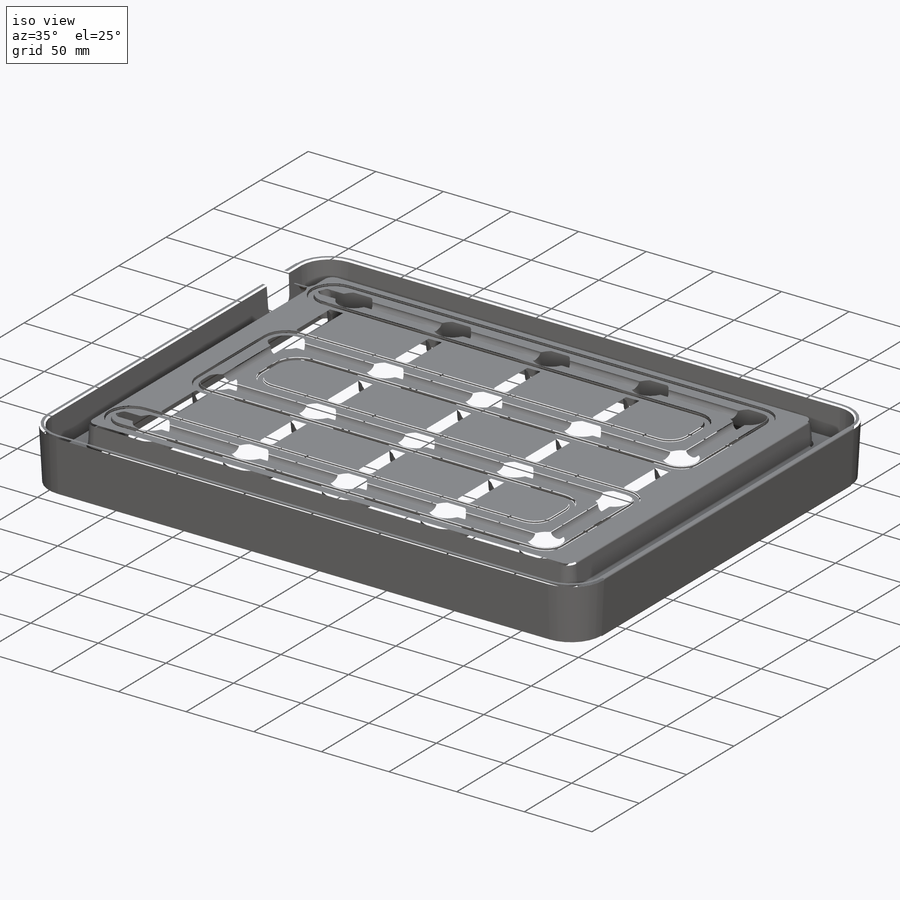
[diagram: iso view]
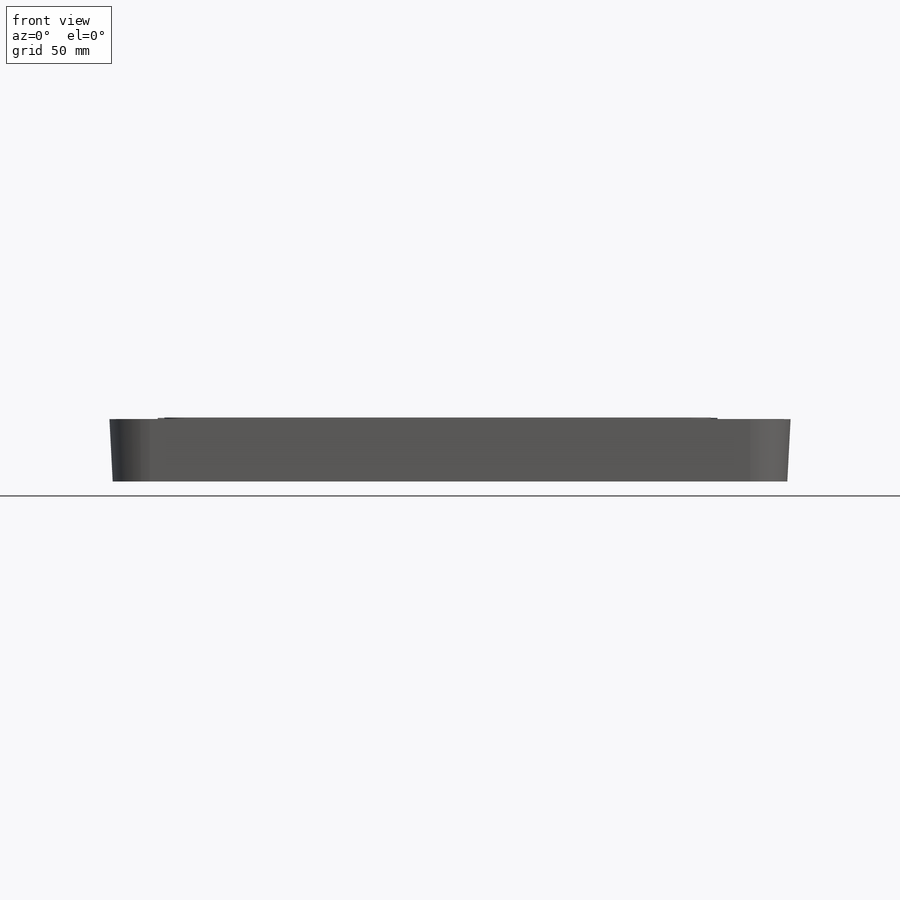
[diagram: front view]
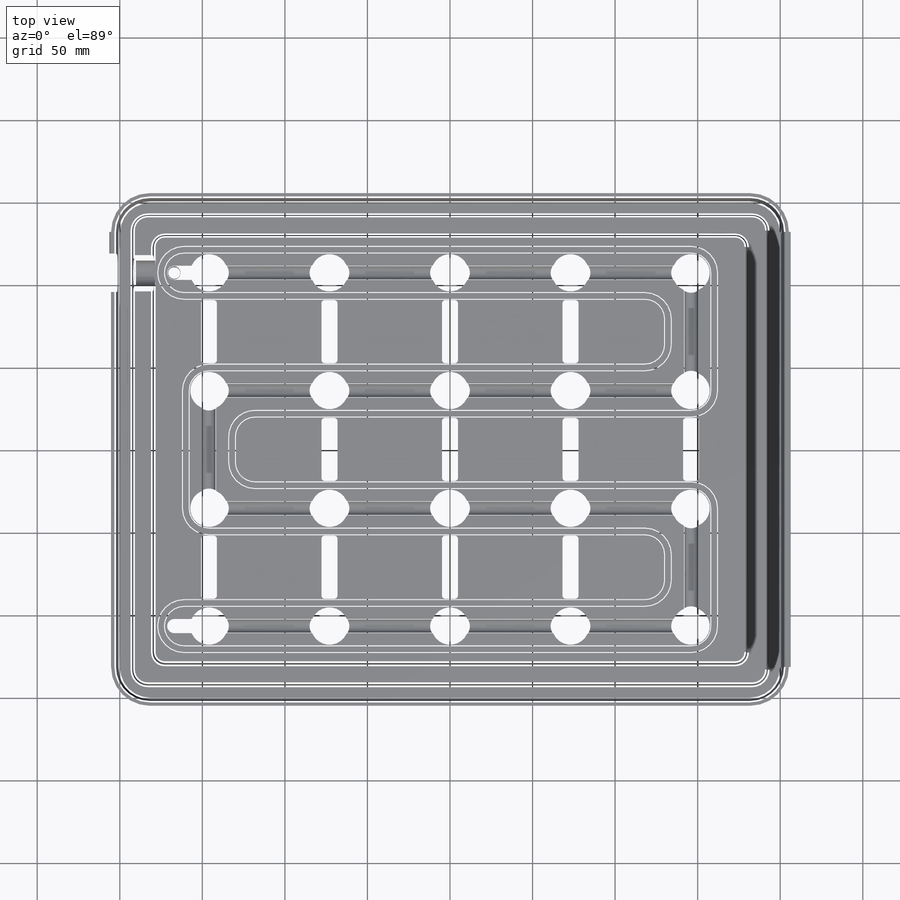
[diagram: top view]
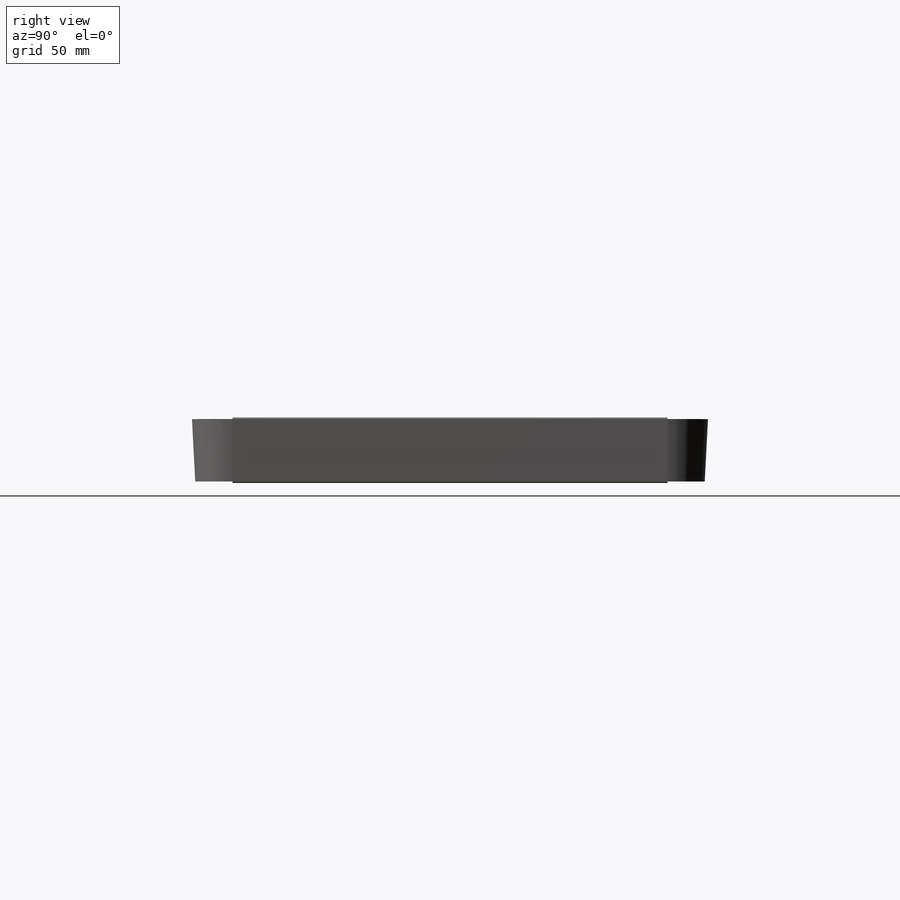
[diagram: right view]
SOLIDWORKS PART (.sldprt)
format: sldprt  version: not decoded by parser v0  size: 8,122,880 bytes
history: native  units: mm
features: sketch x45, shell x29, cut_extrude x27, plane x12, extrude x10, fillet x5, pattern_linear x3, mirror x3, sweep x2, cut_revolve x2, material x1, delete_body x1 (+10 scaffold rows collapsed)
feature tree (150):
  scaffold x10  (default folders/planes/origin — collapsed)
  material  "PA Typ 6"
  plane  "Ebene vorne"
  plane  "Ebene oben"
  plane  "Ebene rechts"
  sketch  "Skizze1"  dims[D3=22.5mm D6=22.5mm D7=5.0mm D1=408.5mm D2=308.5mm D4=40.0mm D5=52.5mm]
  extrude  "Aufsatz-Linear austragen1"  Depth=40mm
  sketch  "Skizze2"  dims[c1.D4=20.0mm c1.D1=~35.666667mm c1.D2=~71.333333mm c1.D3=~136.666667mm c1.D6=73.0mm c1.D8=73.0mm c2.D2=~71.333333mm c2.D3=73.0mm c2.D5=73.0mm c2.D4=3.0]
  cut_extrude  "Schnitt-Linear austragen1"  [1 undecoded]
  sketch  "Skizze3"  dims[D1=5.25mm]
  cut_extrude  "Schnitt-Linear austragen2"  Depth=5mm
  sketch  "Skizze4"  dims[c1.D4=5.0mm c1.D1=188.0mm c1.D2=138.0mm c1.D3=138.0mm c2.D4=~231.201752mm c3.D4=90.0deg c3.D5=188.0mm c3.D1=10.0mm]
  cut_extrude  "Schnitt-Linear austragen3"  Depth=14.5mm
  sketch  "Skizze6"  dims[D1=162.0mm]
  cut_extrude  "Schnitt-Linear austragen4"  [1 undecoded]
  sketch  "Skizze9"  dims[D3=~4.627909mm D1=29.0mm D2=29.0mm]
  cut_extrude  "Schnitt-Linear austragen6"  Depth=27mm
  shell  "Wandung3"  Thickness=4mm
  sketch  "Skizze24"  dims[D1=0.0mm]
  extrude  "Aufsatz-Linear austragen8"  [1 undecoded]
  sketch  "Skizze23"  dims[c1.D1=32.0mm c1.D4=32.0mm c1.D7=2.0mm c1.D2=73.0mm c2.D4=~71.333333mm c2.D6=15.0mm c3.D4=~16.074895mm c3.D7=4.0mm c3.D5=0.0mm c3.D3=5.0]
  fillet  "Verrundung16"  Radius=5mm
  shell  "Verrundung17"  Thickness=1.5mm
  sketch  "Skizze7"  dims[D2=5.0mm D1=20.2mm]
  cut_extrude  "Schnitt-Linear austragen5"  Depth=9.5mm
  sketch  "Skizze10"  dims[c1.D1=0.0mm c1.D2=~4.005489mm c2.D1=0.0mm c2.D2=4.1mm]
  cut_extrude  "Schnitt-Linear austragen7"  Depth=0.25mm
  sketch  "Skizze26"
  cut_extrude  "Schnitt-Linear austragen19"  [1 undecoded]
  plane  "Ebene2"
  sketch  "Skizze14"  dims[c1.D4=12.0mm c1.D5=16.0mm c1.D7=12.0mm c1.D8=12.0mm c1.D9=16.0mm c1.D12=12.0mm c1.D13=16.0mm c2.D12=16.0mm c2.D1=12.0mm c2.D2=16.0mm c3.D1=16.0mm c3.D11=12.0mm c3.D12=16.0mm c4.D11=16.0mm c4.D14=12.0mm c4.D15=16.0mm c5.D14=16.0mm c5.D3=12.0mm c5.D4=16.0mm c6.D3=16.0mm c6.D6=12.0mm c6.D10=4.0mm c6.D11=12.0mm c6.D12=130.0mm c6.D13=134.0mm c6.D14=158.0mm c6.D15=162.0mm c6.D16=~69.471124mm c6.D17=130.0mm c6.D18=134.0mm c6.D19=158.0mm c6.D20=162.0mm c7.D12=~23.666667mm c7.D13=~71.333333mm c7.D14=91.0mm c7.D15=107.0mm c7.D16=123.0mm c7.D17=~71.333333mm c7.D18=91.0mm c7.D19=95.0mm c7.D20=107.0mm c8.D12=107.0mm c8.D1=130.0mm c8.D2=134.0mm c8.D3=158.0mm c8.D4=162.0mm c8.D5=~69.471124mm c8.D6=130.0mm c8.D7=134.0mm c8.D8=158.0mm c8.D9=162.0mm c9.D1=162.0mm c9.D2=~19.666667mm c9.D3=~23.666667mm c9.D4=~71.333333mm c9.D5=91.0mm c9.D6=95.0mm c9.D7=107.0mm c9.D8=~71.333333mm c9.D9=91.0mm c9.D10=95.0mm c9.D11=107.0mm c10.D2=91.0mm c10.D3=119.0mm c10.D4=123.0mm c10.D5=134.0mm c10.D6=130.0mm c10.D7=~19.666667mm c10.D8=134.0mm c10.D9=134.0mm c10.D10=146.0mm c10.D11=130.0mm c10.D12=134.0mm c10.D13=158.0mm c10.D14=~69.471124mm c11.D11=~19.666667mm c11.D12=~23.666667mm c11.D13=~71.333333mm c11.D14=91.0mm c11.D15=95.0mm c11.D16=107.0mm c11.D17=~71.333333mm c11.D18=91.0mm c11.D19=95.0mm c11.D20=107.0mm c12.D11=70.0mm c12.D9=95.0mm c12.D12=~51.666667mm c12.D13=15.0mm c12.D14=12.0mm c12.D15=16.0mm c12.D16=12.0mm c12.D17=16.0mm c12.D18=216.0mm c12.D19=276.0mm c12.D20=280.0mm c12.D21=304.0mm c12.D22=305.0mm c12.D23=308.0mm c13.D14=12.0mm c13.D15=16.0mm c13.D16=12.0mm c13.D17=16.0mm c13.D18=~35.666667mm c13.D19=~178.333333mm c13.D20=198.0mm c14.D14=198.0mm c14.D3=12.0mm c14.D4=16.0mm c14.D5=12.0mm c14.D11=16.0mm c14.D12=216.0mm c15.D14=276.0mm c15.D15=280.0mm c15.D16=304.0mm c15.D17=305.0mm c15.D18=308.0mm c15.D3=12.0mm c15.D4=16.0mm c15.D5=12.0mm c15.D11=~35.666667mm c15.D12=~55.333333mm c16.D14=~158.666667mm c16.D15=~178.333333mm c16.D16=202.0mm c16.D17=214.0mm c16.D18=226.0mm c16.D19=230.0mm c16.D3=130.0mm c16.D4=70.0mm c16.D5=12.0mm c16.D11=16.0mm c16.D12=12.0mm c17.D14=~35.666667mm c17.D15=~55.333333mm c17.D16=~158.666667mm c17.D17=~178.333333mm c17.D18=202.0mm c17.D19=214.0mm c17.D20=226.0mm c17.D21=230.0mm c17.D5=230.0mm c17.D1=2.0mm c17.D2=6.0mm c17.D3=2.0mm c17.D4=4.0mm]
  cut_extrude  "Schnitt-Linear austragen8"  Depth=1.75mm
  plane  "Ebene1"
  sketch  "Skizze19"
  sketch  "Skizze20"  dims[D1=8.0mm]
  sketch  "Skizze28"  dims[c1.D1=~333.979415mm c1.D2=~458.236729mm c2.D1=0.0mm c2.D2=1.0mm c3.D1=0.0mm c3.D2=1.0mm]
  cut_extrude  "Schnitt-Linear austragen24"  [1 undecoded]
  sketch  "Skizze29"  dims[D1=0.0mm]
  extrude  "Aufsatz-Linear austragen9"  Depth=0.25mm
  sweep  "Schnitt-Austragung2"
  cut_extrude  "Schnitt-Linear austragen26"  Depth=8.9999mm
  shell  "Verrundung18"  Thickness=5mm
  sketch  "Skizze31"  dims[D1=8.0mm D2=16.0mm D3=4.0mm]
  sketch  "Skizze32"  dims[D1=32.0mm]
  sweep  "Austragung1"
  cut_extrude  "Schnitt-Linear austragen27"  [1 undecoded]
  sketch  "Skizze2<2>"
  plane  "Ebene3"
  sketch  "Skizze34"  dims[D1=7.0mm D2=16.0mm D3=40.0mm D4=2.5mm]
  extrude  "Aufsatz-Linear austragen11"  Depth=49.333333mm
  sketch  "Skizze57"
  extrude  "Aufsatz-Linear austragen15"  Depth=4mm
  shell  "Verrundung46"  Thickness=1mm
  shell  "Verrundung42"  Thickness=7.5mm
  shell  "Verrundung45"  Thickness=4mm
  sketch  "Skizze58"  dims[D1=0.0mm]
  extrude  "Aufsatz-Linear austragen17"  [1 undecoded]
  pattern_linear  "Lineares Muster1"  Count1=5 Count2=3 Spacing1=73mm Spacing2=71.333333mm
  shell  "Verrundung19"  Thickness=2.5mm
  fillet  "Lineares Muster2"  Radius=5
  shell  "Verrundung20"  Thickness=1mm
  shell  "Verrundung21"  Thickness=1mm
  shell  "Verrundung22"  Thickness=1mm
  shell  "Verrundung23"  Thickness=1mm
  shell  "Verrundung24"  Thickness=1mm
  shell  "Verrundung33"  Thickness=1mm
  plane  "Ebene5"  Offset=52.666667mm
  sketch  "Skizze35"  dims[D1=8.0mm]
  cut_extrude  "Schnitt-Linear austragen28"  Depth=36.333333mm
  fillet  "Lineares Muster5"  Radius=4
  mirror  "Spiegeln1"
  sketch  "Skizze37"  dims[D1=8.0mm D2=~2.151681mm]
  cut_extrude  "Schnitt-Linear austragen30"  Depth=36.333333mm
  fillet  "Lineares Muster6"  Radius=4
  shell  "Verrundung26"  Thickness=1mm
  sketch  "Skizze39"  dims[D1=0.0mm]
  cut_extrude  "Schnitt-Linear austragen31"  Depth=56.333333mm
  sketch  "Skizze40"  dims[D1=0.0mm]
  cut_extrude  "Schnitt-Linear austragen32"  Depth=56.333333mm
  sketch  "Skizze41"  dims[D1=0.0mm]
  cut_extrude  "Schnitt-Linear austragen33"  Depth=56.333333mm
  sketch  "Skizze42"  dims[D1=20.0mm]
  extrude  "Aufsatz-Linear austragen12"  [1 undecoded]
  plane  "Ebene8"
  sketch  "Skizze43"  dims[D1=20.0mm D2=20.0mm D3=107.0mm D4=30.0mm D5=107.0mm]
  cut_extrude  "Schnitt-Linear austragen34"  [1 undecoded]
  shell  "Verrundung28"  Thickness=5mm
  shell  "Verrundung29"  Thickness=1mm
  sketch  "Skizze44"  dims[D1=15.0mm D2=107.0mm D3=30.0mm]
  cut_extrude  "Schnitt-Linear austragen35"  [1 undecoded]
  sketch  "Skizze45"  dims[D1=15.0mm D2=16.0mm D3=107.0mm D4=30.0mm]
  extrude  "Aufsatz-Linear austragen13"  [1 undecoded]
  shell  "Verrundung30"  Thickness=9mm
  sketch  "Skizze46"  dims[D2=8.0mm D1=21.0mm]
  cut_extrude  "Schnitt-Linear austragen36"  Depth=10.173283mm
  sketch  "Skizze47"  dims[D1=7.0mm D2=107.0mm D3=30.0mm]
  cut_extrude  "Schnitt-Linear austragen37"  Depth=12.5mm
  plane  "Ebene10"
  plane  "Ebene12"
  sketch  "Skizze60"  dims[D1=7.0mm]
  cut_extrude  "Schnitt-Linear austragen42"  [1 undecoded]
  sketch  "Skizze55"  dims[D1=0.0mm]
  cut_revolve  "Schnitt-Rotation2"  Angle=360deg
  shell  "Verrundung38"  Thickness=1mm
  sketch  "Skizze61"  dims[D1=0.0mm]
  cut_extrude  "Schnitt-Linear austragen43"  [1 undecoded]
  sketch  "Skizze56"  dims[c1.D1=~17.50889mm c2.D1=30.0deg c2.D2=192.5mm c2.D3=7.0mm c2.D4=3.0mm]
  mirror  "Schnitt-Rotation3"
  shell  "Verrundung39"  Thickness=1mm
  shell  "Verrundung40"  Thickness=0.5mm
  sketch  "Skizze53"  dims[D1=8.0mm D2=8.0mm]
  cut_extrude  "Schnitt-Linear austragen38"  Depth=167mm
  sketch  "Skizze54"  dims[D1=8.0mm]
  mirror  "Schnitt-Rotation1"
  shell  "Verrundung48"  Thickness=1mm
  cut_revolve  "Fläche löschen2"  [1 undecoded]
  shell  "Verrundung49"  Thickness=1mm
  plane  "Ebene11"  Offset=2.5mm
  sketch  "Skizze59"
  cut_extrude  "Schnitt-Linear austragen40"  [1 undecoded]
  shell  "Verrundung51"  Thickness=1mm
  sketch  "Skizze62"  dims[D1=0.0mm D2=1.0mm]
  extrude  "Aufsatz-Linear austragen18"  [1 undecoded]
  fillet  "Lineares Muster8"  Radius=5
  sketch  "Skizze65"  dims[c1.D1=22.0mm c1.D4=~11.984728mm c1.D5=~84.984728mm c2.D4=~11.984728mm c2.D5=~83.318061mm c2.D2=5.0 c2.D3=4.0]
  cut_extrude  "Schnitt-Linear austragen45"  [1 undecoded]
  shell  "Verrundung55"  Thickness=1mm
  shell  "Verrundung56"  Thickness=1mm
  shell  "Verrundung57"  Thickness=1mm
  shell  "Verrundung58"  Thickness=0.3mm
  shell  "Verrundung59"  Thickness=0.3mm
  shell  "Verrundung60"  Thickness=0.25mm
  plane  "Ebene13"  Offset=88mm
  sketch  "Skizze67"  dims[D1=~90.043805mm D2=~492.099866mm]
  sketch  "Skizze68"  dims[c1.D1=~191.715003mm c1.D2=~55.847414mm c2.D1=164.0mm c2.D2=87.0mm c2.D3=174.0mm c2.D4=60.0mm]
  cut_extrude  "Schnitt-Linear austragen49"  [1 undecoded]
  pattern_linear  "Spiegeln2"  [2 undecoded]
  sketch  "3D-Skizze2"  dims[c1.D1=3.75mm c2.D1=~68.884369mm c2.D2=~68.884369mm c3.D1=11.0mm c3.D2=~14.811968mm c4.D2=1.0mm c4.D3=1.0mm c5.D2=1.0mm c5.D3=1.0mm c6.D2=3.75mm]
  extrude  "Aufsatz-Linear austragen19"  Depth=4mm
  pattern_linear  "Spiegeln3"  [2 undecoded]
  delete_body  "Körper-Löschen1"
decode coverage: 96 of 127 modeling features carry decoded parameters
note: ~ marks probable driven/reference dimensions
note: 22 parameter values undecoded
summary: no parameter record found for 18 features
note: suppression state not decoded; provenance and decode notes live in map.json
